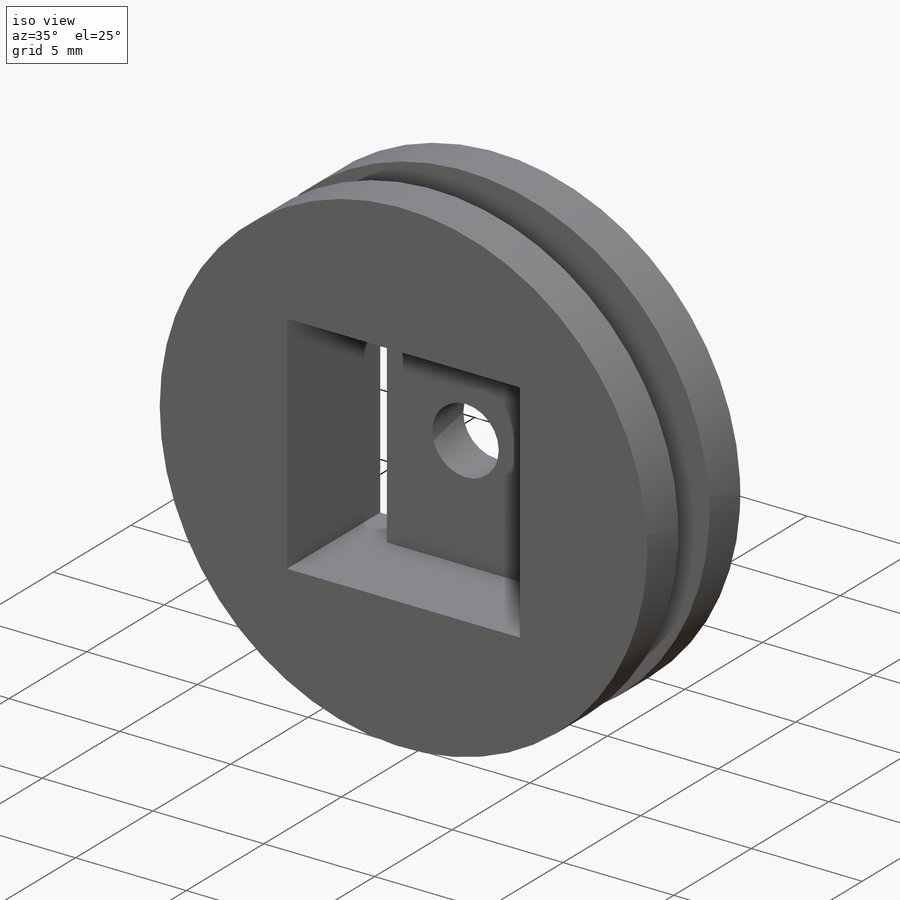
[diagram: iso view]
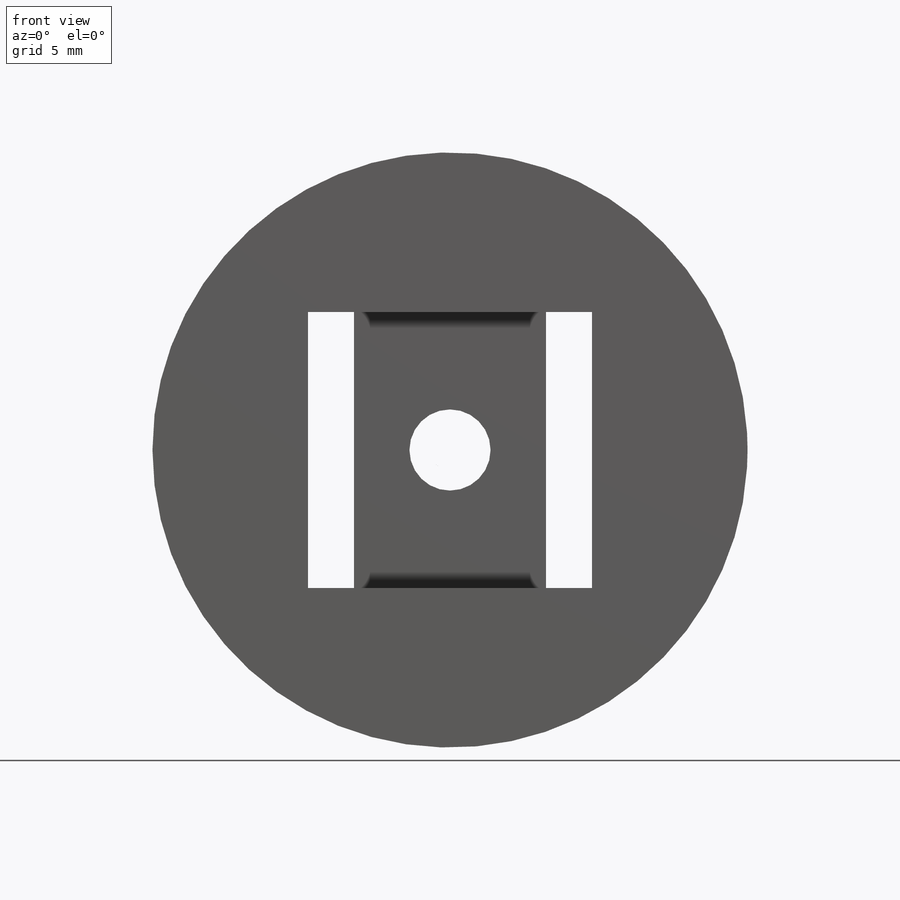
[diagram: front view]
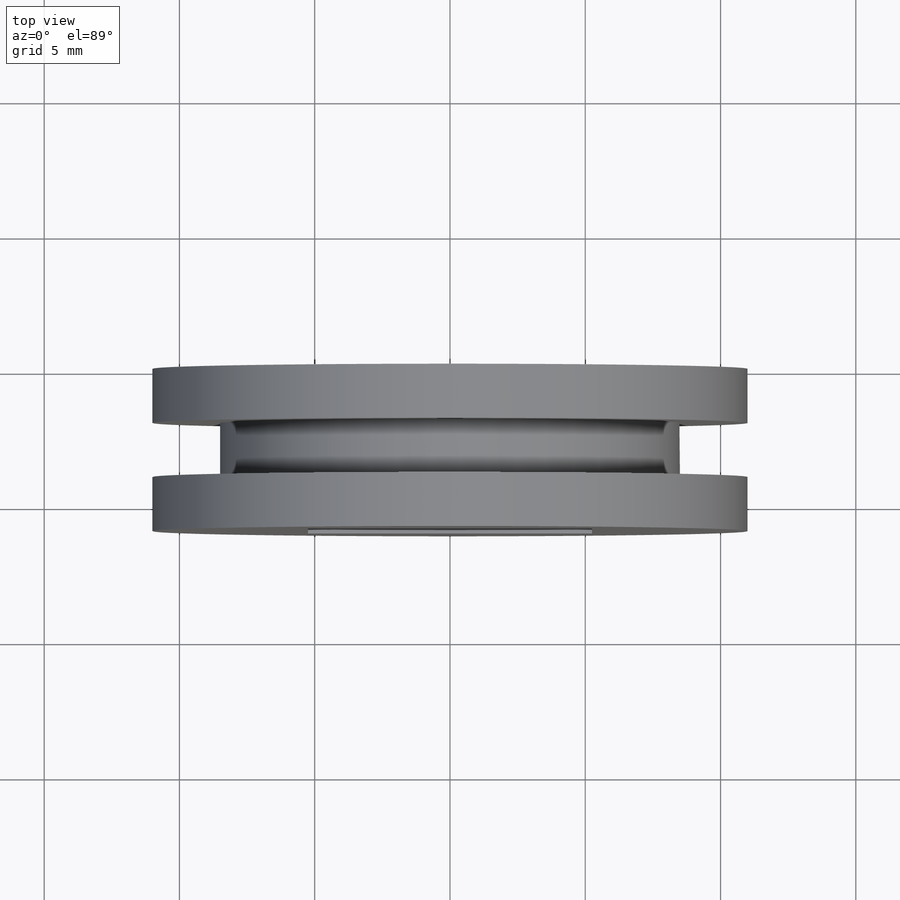
[diagram: top view]
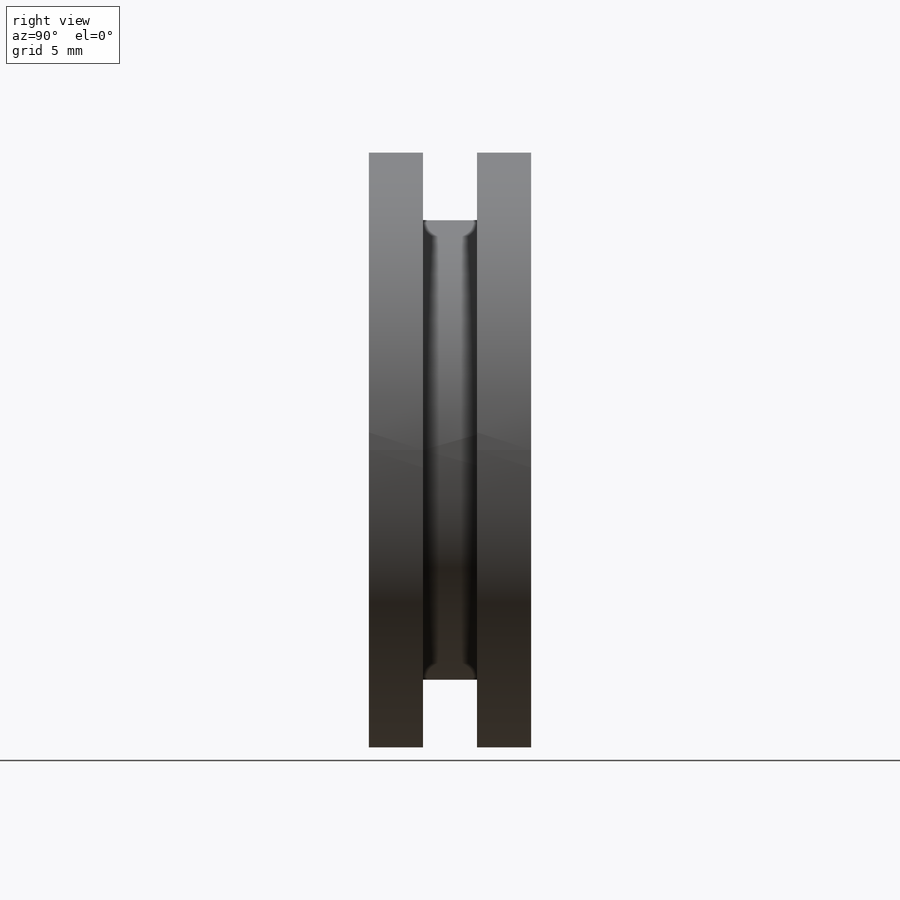
[diagram: right view]
SOLIDWORKS PART (.sldprt)
format: sldprt  version: not decoded by parser v0  size: 217,088 bytes
history: native  units: mm
features: sketch x3, extrude x3, material x1 + 1 further entry (+17 scaffold rows collapsed; 3 parser-record rows omitted)
feature tree (28):
  scaffold x17  (default folders/planes/origin — collapsed)
  material  "ABS"
  "RobotHandParameters"
  parser-record x3  (decoder bookkeeping rows leaked as tree rows — omitted from the tree; the rows remain in map.json)
  sketch  "Sketch1"  dims[c1.D1=22.0mm c1.D2=3.0mm c2.D1=3.0mm c2.D2=22.0mm c2.D3=1.5mm c2.D8=3.0mm c3.D2=2.9mm c3.D3=~2.557928mm c3.D4=9.0mm c3.D1=10.0mm c3.D5=3.75mm c3.D6=3.75mm c3.D7=1.3mm c3.D9=5.0mm c3.D10=5.0mm c3.D11=10.2mm c4.D5=1.7mm c4.D6=4.4mm]
  extrude  "Top Pulley"  Depth=2mm
  sketch  "Sketch2"  dims[D1=17.0mm]
  extrude  "Middle Pulley"  Depth=2mm
  sketch  "Sketch3"
  extrude  "Bottom Pulley"  Depth=2mm
decode coverage: 5 of 6 modeling features carry decoded parameters; 1 rows unclassified (native names shown)
note: ~ marks probable driven/reference dimensions
note: suppression state not decoded; provenance and decode notes live in map.json
